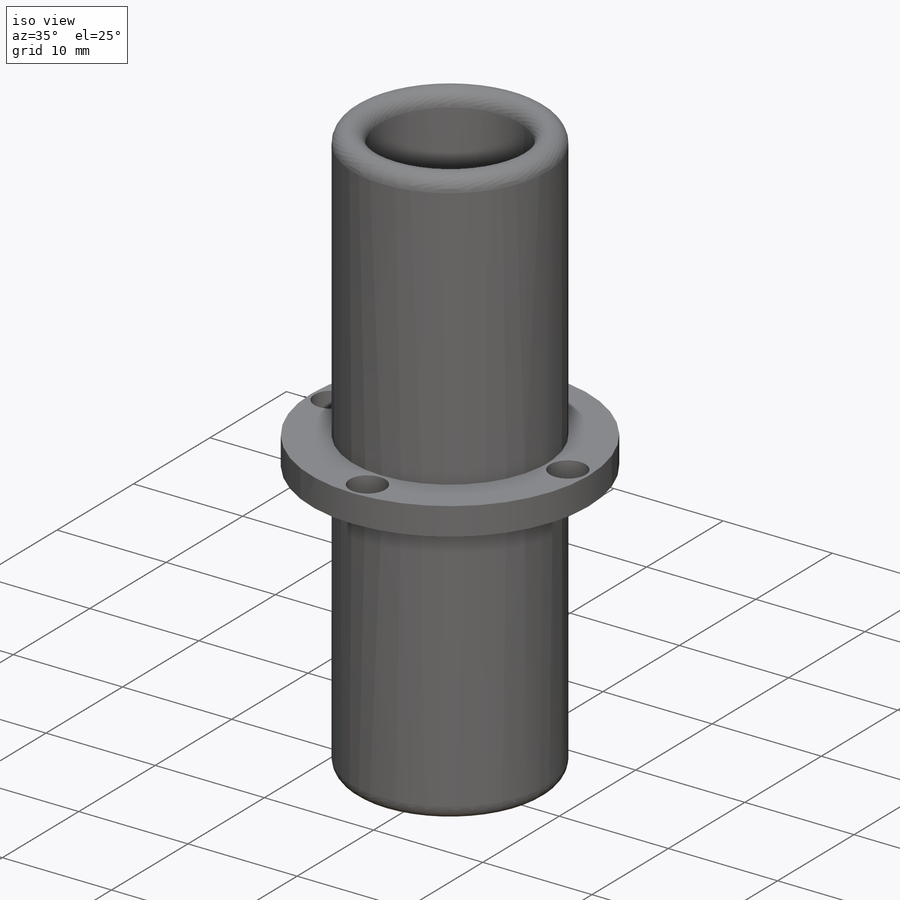
[diagram: iso view]
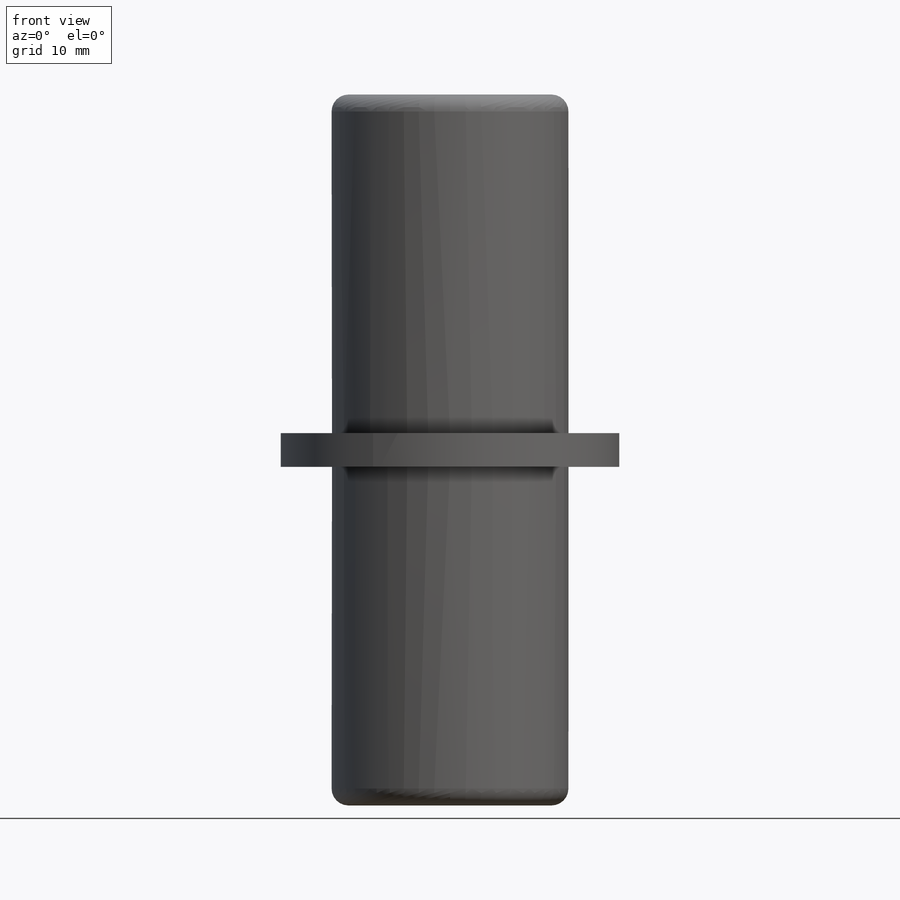
[diagram: front view]
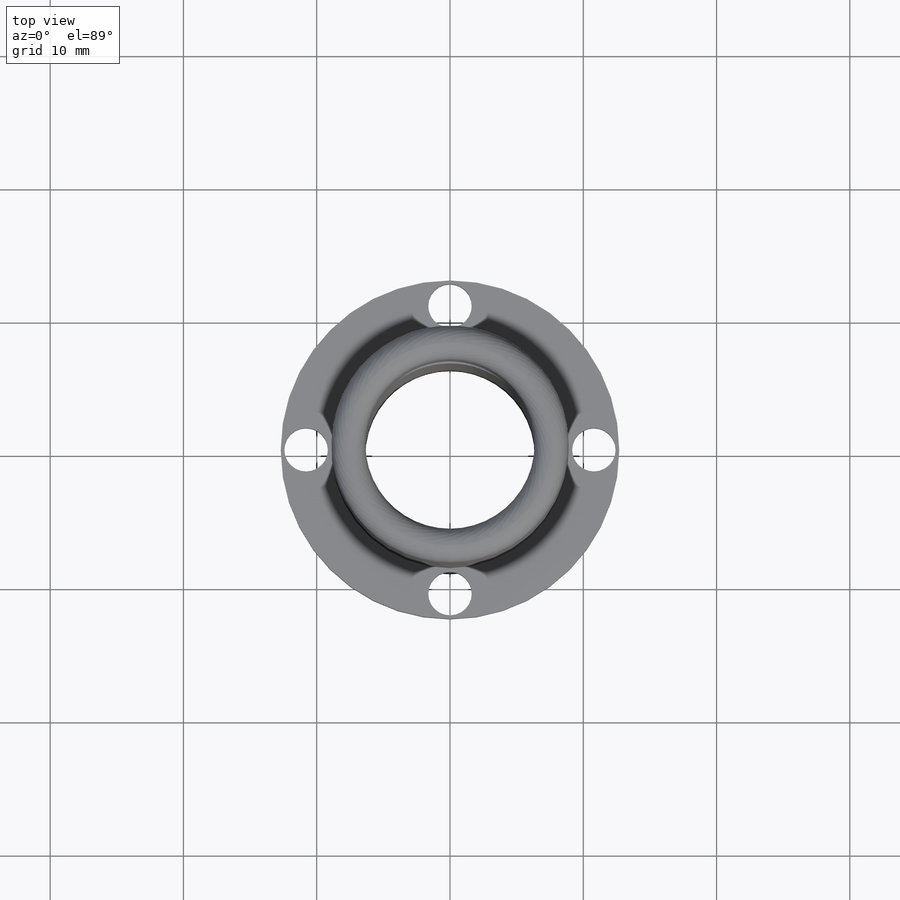
[diagram: top view]
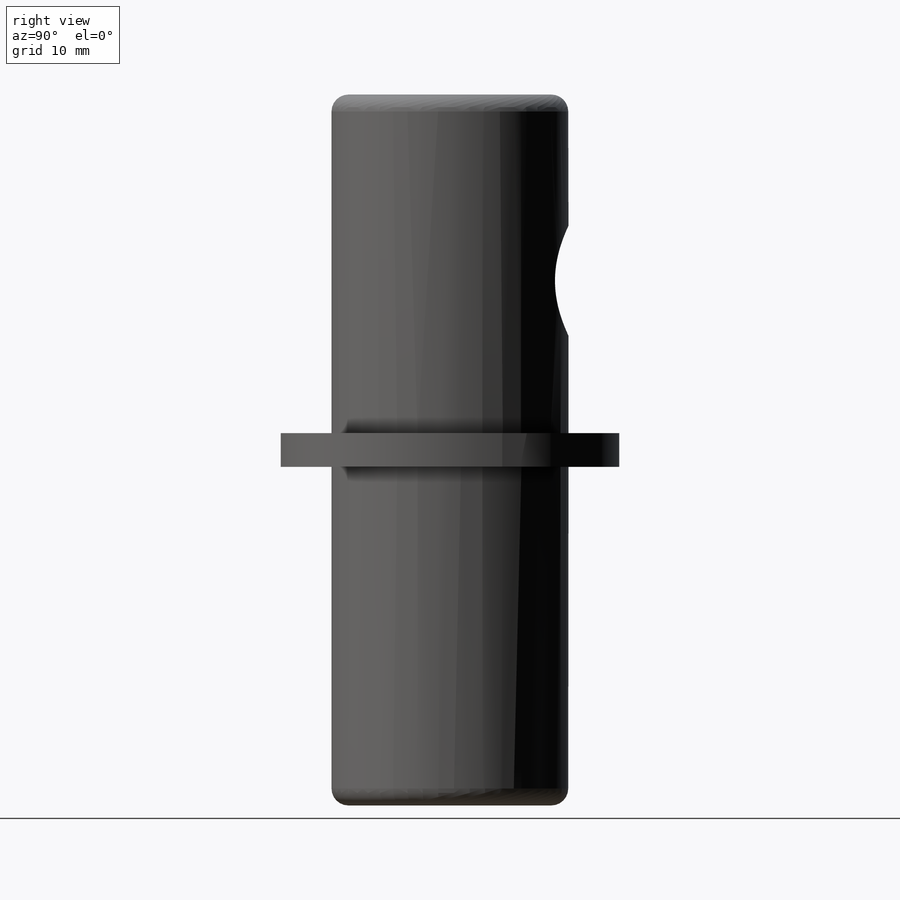
[diagram: right view]
SOLIDWORKS PART (.sldprt)
format: sldprt  version: not decoded by parser v0  size: 257,024 bytes
history: native  units: mm
features: sketch x6, fillet x2, material x1, extrude x1, cut_extrude x1, hole x1 (+11 scaffold rows collapsed)
feature tree (23):
  scaffold x11  (default folders/planes/origin — collapsed)
  material  "Material <not specified>"
  sketch  "Sketch1"  dims[c1.D1=12.7mm c2.D1=25.4mm c2.D5=2.54mm c2.D6=2.54mm c2.D7=5.0mm]
  sketch  "Sketch2"  dims[D1=25.4mm]
  extrude  "Boss-Extrude1"  Depth=2.54mm
  sketch  "Sketch3"  dims[D1=25.4mm D5=2.54mm D6=1.0mm D7=5.0mm]
  sketch  "Sketch4"  dims[D2=8.255mm D1=12.7mm D3=12.7mm]
  cut_extrude  "Cut-Extrude1"  Depth=25.4mm
  hole  "#4 Clearance Hole1"  Diameter=3.2639mm Depth=25.4mm
  sketch  "Sketch6"  dims[D1=21.59mm D2=20.955mm]
  sketch  "Sketch5"  dims[hole-wizard template sketch: 47 standard entries collapsed; hole parameters kept: c15.Hole Depth=25.4mm c15.D3=~14.816244mm c15.Drill Angle=118.0deg]
  fillet  "Fillet2"  Radius=1.27mm
  fillet  "Fillet3"  Radius=1.27mm
decode coverage: 11 of 11 modeling features carry decoded parameters
note: ~ marks probable driven/reference dimensions
note: suppression state not decoded; provenance and decode notes live in map.json
